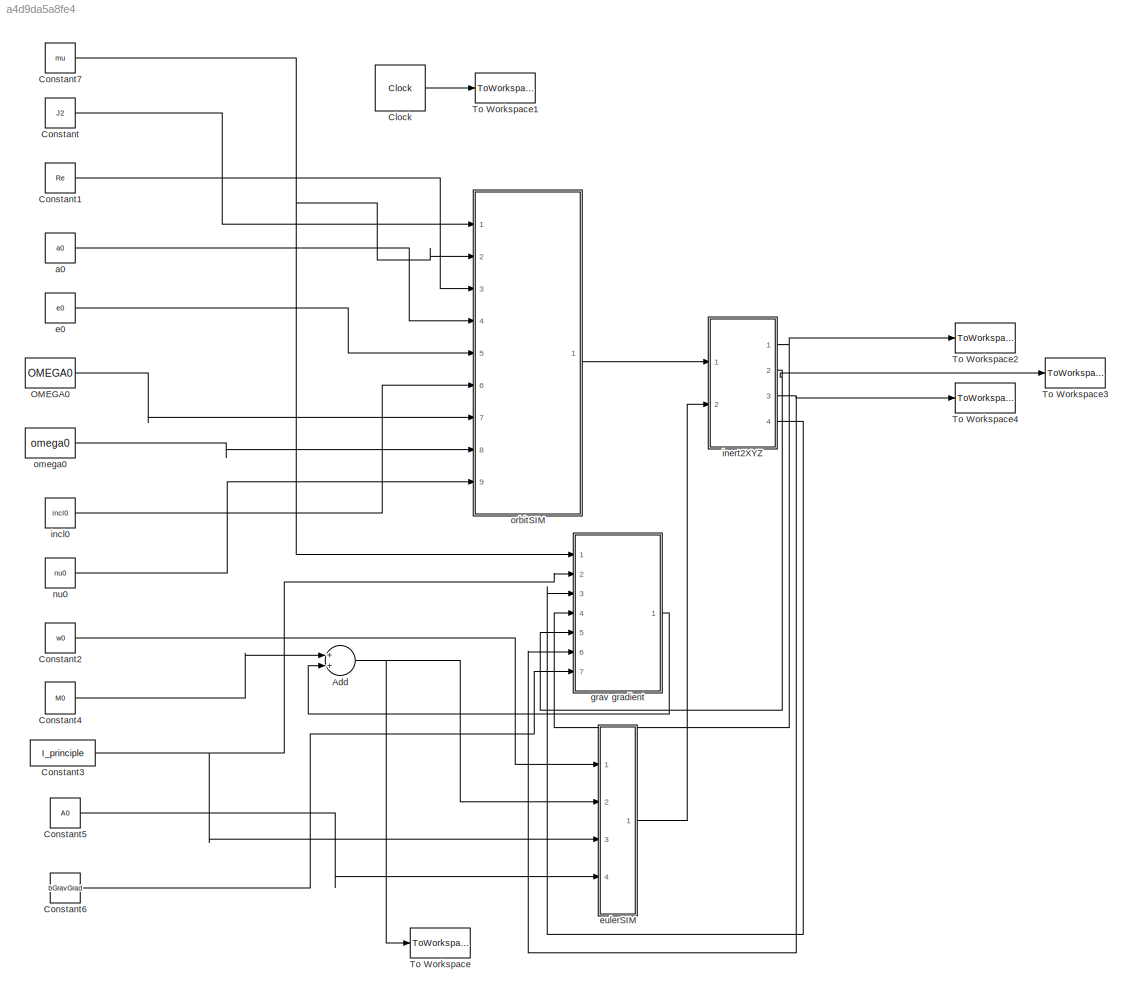
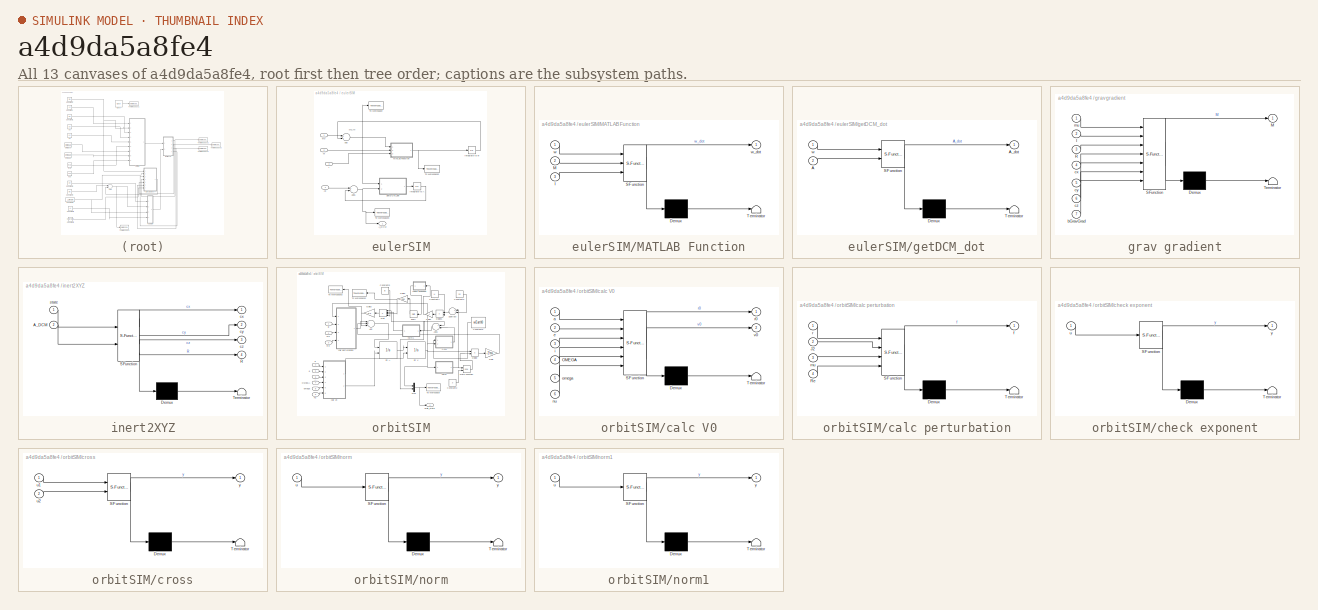
[diagram: thumbnail index - all 13 canvases of the model, root first then tree order]
MODEL slx_a4d9da5a8fe4
KIND model
CONFIG AbsTol = auto
CONFIG FixedStep = auto
CONFIG MaxStep = 60
CONFIG MinStep = auto
CONFIG RelTol = 1e-3
CONFIG SampleTimeConstraint = Unconstrained
CONFIG Solver = ode45
CONFIG SolverMode = Auto
CONFIG SolverName = ode45
CONFIG StartTime = 0.0
CONFIG StopTime = t_total
BLOCK [Sum] Add
  InputSameDT = off
  OutDataTypeStr = Inherit: Inherit via internal rule
  Ports = [2, 1]
  SaturateOnIntegerOverflow = off
BLOCK [Clock] Clock
BLOCK [Constant] Constant
  Value = J2
BLOCK [Constant] Constant1
  Value = Re
BLOCK [Constant] Constant2
  Value = w0
BLOCK [Constant] Constant3
  Value = I_principle
BLOCK [Constant] Constant4
  Value = M0
BLOCK [Constant] Constant5
  Value = A0
BLOCK [Constant] Constant6
  Value = bGravGrad
BLOCK [Constant] Constant7
  Value = mu
BLOCK [Constant] OMEGA0
  Value = OMEGA0
BLOCK [ToWorkspace] To Workspace
  FixptAsFi = on
  MaxDataPoints = inf
  Ports = [1]
  SampleTime = -1
  Save2DSignal = 3-D array (concatenate along third dimension)
  VariableName = Moments
BLOCK [ToWorkspace] To Workspace1
  FixptAsFi = on
  MaxDataPoints = inf
  Ports = [1]
  SampleTime = -1
  Save2DSignal = 3-D array (concatenate along third dimension)
  VariableName = tout
BLOCK [ToWorkspace] To Workspace2
  FixptAsFi = on
  MaxDataPoints = inf
  Ports = [1]
  SampleTime = -1
  Save2DSignal = 3-D array (concatenate along third dimension)
  VariableName = cx
BLOCK [ToWorkspace] To Workspace3
  FixptAsFi = on
  MaxDataPoints = inf
  Ports = [1]
  SampleTime = -1
  Save2DSignal = 3-D array (concatenate along third dimension)
  VariableName = cy
BLOCK [ToWorkspace] To Workspace4
  FixptAsFi = on
  MaxDataPoints = inf
  Ports = [1]
  SampleTime = -1
  Save2DSignal = 3-D array (concatenate along third dimension)
  VariableName = cz
BLOCK [Constant] a0
  Value = a0
BLOCK [Constant] e0
  Value = e0
BLOCK [SubSystem] eulerSIM
  Ports = [4, 1]
  RequestExecContextInheritance = off
BLOCK [Inport] eulerSIM/A0
  IconDisplay = Port number
  Port = 4
BLOCK [Outport] eulerSIM/A_DCM
  IconDisplay = Port number
BLOCK [Sum] eulerSIM/Add
  InputSameDT = off
  OutDataTypeStr = Inherit: Inherit via internal rule
  Ports = [2, 1]
  SaturateOnIntegerOverflow = off
BLOCK [Sum] eulerSIM/Add1
  InputSameDT = off
  OutDataTypeStr = Inherit: Inherit via internal rule
  Ports = [2, 1]
  SaturateOnIntegerOverflow = off
BLOCK [Inport] eulerSIM/I
  IconDisplay = Port number
  Port = 3
BLOCK [Inport] eulerSIM/M
  IconDisplay = Port number
  Port = 2
BLOCK [SubSystem] eulerSIM/MATLAB Function
  ErrorFcn = Stateflow.Translate.translate
  PermitHierarchicalResolution = ExplicitOnly
  Ports = [3, 1]
  RequestExecContextInheritance = off
  SFBlockType = MATLAB Function
  TreatAsAtomicUnit = on
BLOCK [Demux] eulerSIM/MATLAB Function/ Demux 
  Outputs = 1
  Ports = [1, 1]
BLOCK [S-Function] eulerSIM/MATLAB Function/ SFunction 
  EnableBusSupport = on
  FunctionName = sf_sfun
  PortCounts = [3 2]
  Ports = [3, 2]
  Tag = Stateflow S-Function sixDOF_SIM 7
BLOCK [Terminator] eulerSIM/MATLAB Function/ Terminator 
BLOCK [Inport] eulerSIM/MATLAB Function/I
  IconDisplay = Port number
  Port = 3
BLOCK [Inport] eulerSIM/MATLAB Function/M
  IconDisplay = Port number
  Port = 2
BLOCK [Inport] eulerSIM/MATLAB Function/w
  IconDisplay = Port number
BLOCK [Outport] eulerSIM/MATLAB Function/w_dot
  IconDisplay = Port number
BLOCK [ToWorkspace] eulerSIM/To Workspace
  FixptAsFi = on
  MaxDataPoints = inf
  Ports = [1]
  SampleTime = -1
  Save2DSignal = 3-D array (concatenate along third dimension)
  VariableName = ang_vel
BLOCK [ToWorkspace] eulerSIM/To Workspace2
  FixptAsFi = on
  MaxDataPoints = inf
  Ports = [1]
  SampleTime = -1
  Save2DSignal = 3-D array (concatenate along third dimension)
  VariableName = ang_accel
BLOCK [ToWorkspace] eulerSIM/To Workspace3
  FixptAsFi = on
  MaxDataPoints = inf
  Ports = [1]
  SampleTime = -1
  Save2DSignal = 3-D array (concatenate along third dimension)
  VariableName = A_DCM
BLOCK [SubSystem] eulerSIM/getDCM_dot
  ErrorFcn = Stateflow.Translate.translate
  PermitHierarchicalResolution = ExplicitOnly
  Ports = [2, 1]
  RequestExecContextInheritance = off
  SFBlockType = MATLAB Function
  TreatAsAtomicUnit = on
BLOCK [Demux] eulerSIM/getDCM_dot/ Demux 
  Outputs = 1
  Ports = [1, 1]
BLOCK [S-Function] eulerSIM/getDCM_dot/ SFunction 
  EnableBusSupport = on
  FunctionName = sf_sfun
  PortCounts = [2 2]
  Ports = [2, 2]
  Tag = Stateflow S-Function sixDOF_SIM 8
BLOCK [Terminator] eulerSIM/getDCM_dot/ Terminator 
BLOCK [Inport] eulerSIM/getDCM_dot/A
  IconDisplay = Port number
  Port = 2
BLOCK [Outport] eulerSIM/getDCM_dot/A_dot
  IconDisplay = Port number
BLOCK [Inport] eulerSIM/getDCM_dot/w
  IconDisplay = Port number
BLOCK [Integrator] eulerSIM/integrate to A
  Ports = [1, 1]
BLOCK [Integrator] eulerSIM/integrate to w
  Ports = [1, 1]
BLOCK [Inport] eulerSIM/w0
  IconDisplay = Port number
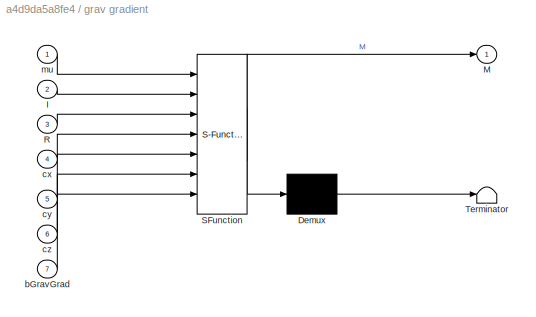
BLOCK [SubSystem] grav gradient
  ErrorFcn = Stateflow.Translate.translate
  PermitHierarchicalResolution = ExplicitOnly
  Ports = [7, 1]
  RequestExecContextInheritance = off
  SFBlockType = MATLAB Function
  TreatAsAtomicUnit = on
BLOCK [Demux] grav gradient/ Demux 
  Outputs = 1
  Ports = [1, 1]
BLOCK [S-Function] grav gradient/ SFunction 
  EnableBusSupport = on
  FunctionName = sf_sfun
  PortCounts = [7 2]
  Ports = [7, 2]
  Tag = Stateflow S-Function sixDOF_SIM 9
BLOCK [Terminator] grav gradient/ Terminator 
BLOCK [Inport] grav gradient/I
  IconDisplay = Port number
  Port = 2
BLOCK [Outport] grav gradient/M
  IconDisplay = Port number
BLOCK [Inport] grav gradient/R
  IconDisplay = Port number
  Port = 3
BLOCK [Inport] grav gradient/bGravGrad
  IconDisplay = Port number
  Port = 7
BLOCK [Inport] grav gradient/cx
  IconDisplay = Port number
  Port = 4
BLOCK [Inport] grav gradient/cy
  IconDisplay = Port number
  Port = 5
BLOCK [Inport] grav gradient/cz
  IconDisplay = Port number
  Port = 6
BLOCK [Inport] grav gradient/mu
  IconDisplay = Port number
BLOCK [Constant] incl0
  Value = incl0
BLOCK [SubSystem] inert2XYZ
  ErrorFcn = Stateflow.Translate.translate
  PermitHierarchicalResolution = ExplicitOnly
  Ports = [2, 4]
  RequestExecContextInheritance = off
  SFBlockType = MATLAB Function
  TreatAsAtomicUnit = on
BLOCK [Demux] inert2XYZ/ Demux 
  Outputs = 1
  Ports = [1, 1]
BLOCK [S-Function] inert2XYZ/ SFunction 
  EnableBusSupport = on
  FunctionName = sf_sfun
  PortCounts = [2 5]
  Ports = [2, 5]
  Tag = Stateflow S-Function sixDOF_SIM 10
BLOCK [Terminator] inert2XYZ/ Terminator 
BLOCK [Inport] inert2XYZ/A_DCM
  IconDisplay = Port number
  Port = 2
BLOCK [Outport] inert2XYZ/R
  IconDisplay = Port number
  Port = 4
BLOCK [Outport] inert2XYZ/cx
  IconDisplay = Port number
BLOCK [Outport] inert2XYZ/cy
  IconDisplay = Port number
  Port = 2
BLOCK [Outport] inert2XYZ/cz
  IconDisplay = Port number
  Port = 3
BLOCK [Inport] inert2XYZ/state
  IconDisplay = Port number
BLOCK [Constant] nu0
  Value = nu0
BLOCK [Constant] omega0
  Value = omega0
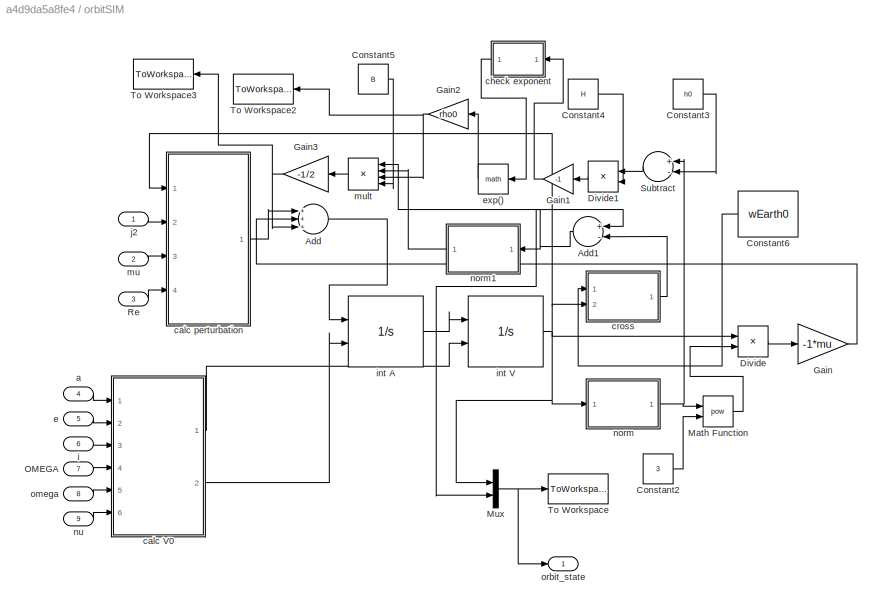
BLOCK [SubSystem] orbitSIM
  Ports = [9, 1]
  RequestExecContextInheritance = off
BLOCK [Sum] orbitSIM/Add
  InputSameDT = off
  Inputs = +++
  OutDataTypeStr = Inherit: Inherit via internal rule
  Ports = [3, 1]
  SaturateOnIntegerOverflow = off
BLOCK [Sum] orbitSIM/Add1
  InputSameDT = off
  Inputs = +-
  OutDataTypeStr = Inherit: Inherit via internal rule
  Ports = [2, 1]
  SaturateOnIntegerOverflow = off
BLOCK [Constant] orbitSIM/Constant2
  Value = 3
BLOCK [Constant] orbitSIM/Constant3
  Value = h0
BLOCK [Constant] orbitSIM/Constant4
  Value = H
BLOCK [Constant] orbitSIM/Constant5
  Value = B
BLOCK [Constant] orbitSIM/Constant6
  Value = wEarth0
BLOCK [Product] orbitSIM/Divide
  InputSameDT = off
  Inputs = */
  OutDataTypeStr = Inherit: Inherit via internal rule
  Ports = [2, 1]
  RndMeth = Floor
  SaturateOnIntegerOverflow = off
BLOCK [Product] orbitSIM/Divide1
  InputSameDT = off
  Inputs = */
  OutDataTypeStr = Inherit: Inherit via internal rule
  Ports = [2, 1]
  RndMeth = Floor
  SaturateOnIntegerOverflow = off
BLOCK [Gain] orbitSIM/Gain
  Gain = -1*mu
  OutDataTypeStr = Inherit: Inherit via internal rule
  ParamDataTypeStr = Inherit: Inherit via internal rule
  SaturateOnIntegerOverflow = off
BLOCK [Gain] orbitSIM/Gain1
  Gain = -1
  OutDataTypeStr = Inherit: Inherit via internal rule
  ParamDataTypeStr = Inherit: Inherit via internal rule
  SaturateOnIntegerOverflow = off
BLOCK [Gain] orbitSIM/Gain2
  Gain = rho0
  OutDataTypeStr = Inherit: Inherit via internal rule
  ParamDataTypeStr = Inherit: Inherit via internal rule
  SaturateOnIntegerOverflow = off
BLOCK [Gain] orbitSIM/Gain3
  Gain = -1/2
  OutDataTypeStr = Inherit: Inherit via internal rule
  ParamDataTypeStr = Inherit: Inherit via internal rule
  SaturateOnIntegerOverflow = off
BLOCK [Math] orbitSIM/Math Function
  Operator = pow
  Ports = [2, 1]
BLOCK [Mux] orbitSIM/Mux
  DisplayOption = bar
  Inputs = 2
  Ports = [2, 1]
BLOCK [Inport] orbitSIM/OMEGA
  IconDisplay = Port number
  Port = 7
BLOCK [Inport] orbitSIM/Re
  IconDisplay = Port number
  Port = 3
BLOCK [Sum] orbitSIM/Subtract
  InputSameDT = off
  Inputs = +-
  OutDataTypeStr = Inherit: Inherit via internal rule
  Ports = [2, 1]
  SaturateOnIntegerOverflow = off
BLOCK [ToWorkspace] orbitSIM/To Workspace
  FixptAsFi = on
  MaxDataPoints = inf
  Ports = [1]
  SampleTime = -1
  Save2DSignal = 3-D array (concatenate along third dimension)
  VariableName = Xout
BLOCK [ToWorkspace] orbitSIM/To Workspace2
  FixptAsFi = on
  MaxDataPoints = inf
  Ports = [1]
  SampleTime = -1
  Save2DSignal = 3-D array (concatenate along third dimension)
  VariableName = rho
BLOCK [ToWorkspace] orbitSIM/To Workspace3
  FixptAsFi = on
  MaxDataPoints = inf
  Ports = [1]
  SampleTime = -1
  Save2DSignal = 3-D array (concatenate along third dimension)
  VariableName = fDrag
BLOCK [Inport] orbitSIM/a
  IconDisplay = Port number
  Port = 4
BLOCK [SubSystem] orbitSIM/calc V0
  ErrorFcn = Stateflow.Translate.translate
  PermitHierarchicalResolution = ExplicitOnly
  Ports = [6, 2]
  RequestExecContextInheritance = off
  SFBlockType = MATLAB Function
  TreatAsAtomicUnit = on
BLOCK [Demux] orbitSIM/calc V0/ Demux 
  Outputs = 1
  Ports = [1, 1]
BLOCK [S-Function] orbitSIM/calc V0/ SFunction 
  EnableBusSupport = on
  FunctionName = sf_sfun
  PortCounts = [6 3]
  Ports = [6, 3]
  Tag = Stateflow S-Function sixDOF_SIM 3
BLOCK [Terminator] orbitSIM/calc V0/ Terminator 
BLOCK [Inport] orbitSIM/calc V0/OMEGA
  IconDisplay = Port number
  Port = 4
BLOCK [Inport] orbitSIM/calc V0/a
  IconDisplay = Port number
BLOCK [Inport] orbitSIM/calc V0/e
  IconDisplay = Port number
  Port = 2
BLOCK [Inport] orbitSIM/calc V0/i
  IconDisplay = Port number
  Port = 3
BLOCK [Inport] orbitSIM/calc V0/nu
  IconDisplay = Port number
  Port = 6
BLOCK [Inport] orbitSIM/calc V0/omega
  IconDisplay = Port number
  Port = 5
BLOCK [Outport] orbitSIM/calc V0/r0
  IconDisplay = Port number
BLOCK [Outport] orbitSIM/calc V0/v0
  IconDisplay = Port number
  Port = 2
BLOCK [SubSystem] orbitSIM/calc perturbation
  ErrorFcn = Stateflow.Translate.translate
  PermitHierarchicalResolution = ExplicitOnly
  Ports = [4, 1]
  RequestExecContextInheritance = off
  SFBlockType = MATLAB Function
  TreatAsAtomicUnit = on
BLOCK [Demux] orbitSIM/calc perturbation/ Demux 
  Outputs = 1
  Ports = [1, 1]
BLOCK [S-Function] orbitSIM/calc perturbation/ SFunction 
  EnableBusSupport = on
  FunctionName = sf_sfun
  PortCounts = [4 2]
  Ports = [4, 2]
  Tag = Stateflow S-Function sixDOF_SIM 2
BLOCK [Terminator] orbitSIM/calc perturbation/ Terminator 
BLOCK [Inport] orbitSIM/calc perturbation/J2
  IconDisplay = Port number
  Port = 2
BLOCK [Inport] orbitSIM/calc perturbation/Re
  IconDisplay = Port number
  Port = 4
BLOCK [Outport] orbitSIM/calc perturbation/f
  IconDisplay = Port number
BLOCK [Inport] orbitSIM/calc perturbation/mu
  IconDisplay = Port number
  Port = 3
BLOCK [Inport] orbitSIM/calc perturbation/r
  IconDisplay = Port number
BLOCK [SubSystem] orbitSIM/check exponent
  ErrorFcn = Stateflow.Translate.translate
  PermitHierarchicalResolution = ExplicitOnly
  Ports = [1, 1]
  RequestExecContextInheritance = off
  SFBlockType = MATLAB Function
  TreatAsAtomicUnit = on
BLOCK [Demux] orbitSIM/check exponent/ Demux 
  Outputs = 1
  Ports = [1, 1]
BLOCK [S-Function] orbitSIM/check exponent/ SFunction 
  EnableBusSupport = on
  FunctionName = sf_sfun
  PortCounts = [1 2]
  Ports = [1, 2]
  Tag = Stateflow S-Function sixDOF_SIM 6
BLOCK [Terminator] orbitSIM/check exponent/ Terminator 
BLOCK [Inport] orbitSIM/check exponent/u
  IconDisplay = Port number
BLOCK [Outport] orbitSIM/check exponent/y
  IconDisplay = Port number
BLOCK [SubSystem] orbitSIM/cross
  ErrorFcn = Stateflow.Translate.translate
  PermitHierarchicalResolution = ExplicitOnly
  Ports = [2, 1]
  RequestExecContextInheritance = off
  SFBlockType = MATLAB Function
  TreatAsAtomicUnit = on
BLOCK [Demux] orbitSIM/cross/ Demux 
  Outputs = 1
  Ports = [1, 1]
BLOCK [S-Function] orbitSIM/cross/ SFunction 
  EnableBusSupport = on
  FunctionName = sf_sfun
  PortCounts = [2 2]
  Ports = [2, 2]
  Tag = Stateflow S-Function sixDOF_SIM 5
BLOCK [Terminator] orbitSIM/cross/ Terminator 
BLOCK [Inport] orbitSIM/cross/u1
  IconDisplay = Port number
BLOCK [Inport] orbitSIM/cross/u2
  IconDisplay = Port number
  Port = 2
BLOCK [Outport] orbitSIM/cross/y
  IconDisplay = Port number
BLOCK [Inport] orbitSIM/e
  IconDisplay = Port number
  Port = 5
BLOCK [Math] orbitSIM/exp()
  Ports = [1, 1]
BLOCK [Inport] orbitSIM/i
  IconDisplay = Port number
  Port = 6
BLOCK [Integrator] orbitSIM/int A
  InitialConditionSource = external
  Ports = [2, 1]
BLOCK [Integrator] orbitSIM/int V
  InitialConditionSource = external
  Ports = [2, 1]
BLOCK [Inport] orbitSIM/j2
  IconDisplay = Port number
BLOCK [Inport] orbitSIM/mu
  IconDisplay = Port number
  Port = 2
BLOCK [Product] orbitSIM/mult
  InputSameDT = off
  Inputs = ****
  OutDataTypeStr = Inherit: Inherit via internal rule
  Ports = [4, 1]
  RndMeth = Floor
  SaturateOnIntegerOverflow = off
BLOCK [SubSystem] orbitSIM/norm
  ErrorFcn = Stateflow.Translate.translate
  PermitHierarchicalResolution = ExplicitOnly
  Ports = [1, 1]
  RequestExecContextInheritance = off
  SFBlockType = MATLAB Function
  TreatAsAtomicUnit = on
BLOCK [Demux] orbitSIM/norm/ Demux 
  Outputs = 1
  Ports = [1, 1]
BLOCK [S-Function] orbitSIM/norm/ SFunction 
  EnableBusSupport = on
  FunctionName = sf_sfun
  PortCounts = [1 2]
  Ports = [1, 2]
  Tag = Stateflow S-Function sixDOF_SIM 1
BLOCK [Terminator] orbitSIM/norm/ Terminator 
BLOCK [Inport] orbitSIM/norm/u
  IconDisplay = Port number
BLOCK [Outport] orbitSIM/norm/y
  IconDisplay = Port number
BLOCK [SubSystem] orbitSIM/norm1
  ErrorFcn = Stateflow.Translate.translate
  PermitHierarchicalResolution = ExplicitOnly
  Ports = [1, 1]
  RequestExecContextInheritance = off
  SFBlockType = MATLAB Function
  TreatAsAtomicUnit = on
BLOCK [Demux] orbitSIM/norm1/ Demux 
  Outputs = 1
  Ports = [1, 1]
BLOCK [S-Function] orbitSIM/norm1/ SFunction 
  EnableBusSupport = on
  FunctionName = sf_sfun
  PortCounts = [1 2]
  Ports = [1, 2]
  Tag = Stateflow S-Function sixDOF_SIM 4
BLOCK [Terminator] orbitSIM/norm1/ Terminator 
BLOCK [Inport] orbitSIM/norm1/u
  IconDisplay = Port number
BLOCK [Outport] orbitSIM/norm1/y
  IconDisplay = Port number
BLOCK [Inport] orbitSIM/nu
  IconDisplay = Port number
  Port = 9
BLOCK [Inport] orbitSIM/omega
  IconDisplay = Port number
  Port = 8
BLOCK [Outport] orbitSIM/orbit_state
  IconDisplay = Port number
ANNOTATION eulerSIM: ang_vel
NET Add:1 -> To Workspace:1, eulerSIM:2
LINE Clock:1 -> To Workspace1:1
LINE Constant1:1 -> orbitSIM:3
LINE Constant2:1 -> eulerSIM:1
NET Constant3:1 -> eulerSIM:3, grav gradient:2
LINE Constant4:1 -> Add:1
LINE Constant5:1 -> eulerSIM:4
LINE Constant6:1 -> grav gradient:7
NET Constant7:1 -> grav gradient:1, orbitSIM:2
LINE Constant:1 -> orbitSIM:1
LINE OMEGA0:1 -> orbitSIM:7
LINE a0:1 -> orbitSIM:4
LINE e0:1 -> orbitSIM:5
LINE eulerSIM/A0:1 -> eulerSIM/Add1:1
NET eulerSIM/Add1:1 -> eulerSIM/A_DCM:1, eulerSIM/To Workspace3:1, eulerSIM/getDCM_dot:2
NET eulerSIM/Add:1 -> eulerSIM/MATLAB Function:1, eulerSIM/To Workspace:1, eulerSIM/getDCM_dot:1
LINE eulerSIM/I:1 -> eulerSIM/MATLAB Function:3
LINE eulerSIM/M:1 -> eulerSIM/MATLAB Function:2
NET eulerSIM/MATLAB Function:1 -> eulerSIM/To Workspace2:1, eulerSIM/integrate to w:1
LINE eulerSIM/getDCM_dot:1 -> eulerSIM/integrate to A:1
LINE eulerSIM/integrate to A:1 -> eulerSIM/Add1:2
LINE eulerSIM/integrate to w:1 -> eulerSIM/Add:2
LINE eulerSIM/w0:1 -> eulerSIM/Add:1
LINE eulerSIM:1 -> inert2XYZ:2
LINE grav gradient:1 -> Add:2
LINE incl0:1 -> orbitSIM:6
NET inert2XYZ:1 -> To Workspace2:1, grav gradient:4
NET inert2XYZ:2 -> To Workspace3:1, grav gradient:5
NET inert2XYZ:3 -> To Workspace4:1, grav gradient:6
LINE inert2XYZ:4 -> grav gradient:3
LINE nu0:1 -> orbitSIM:9
LINE omega0:1 -> orbitSIM:8
NET orbitSIM/Add1:1 -> orbitSIM/mult:1, orbitSIM/norm1:1
LINE orbitSIM/Add:1 -> orbitSIM/int A:1
LINE orbitSIM/Constant2:1 -> orbitSIM/Math Function:2
LINE orbitSIM/Constant3:1 -> orbitSIM/Subtract:2
LINE orbitSIM/Constant4:1 -> orbitSIM/Divide1:2
LINE orbitSIM/Constant5:1 -> orbitSIM/mult:4
LINE orbitSIM/Constant6:1 -> orbitSIM/cross:1
LINE orbitSIM/Divide1:1 -> orbitSIM/Gain1:1
LINE orbitSIM/Divide:1 -> orbitSIM/Gain:1
LINE orbitSIM/Gain1:1 -> orbitSIM/check exponent:1
NET orbitSIM/Gain2:1 -> orbitSIM/To Workspace2:1, orbitSIM/mult:3
NET orbitSIM/Gain3:1 -> orbitSIM/Add:3, orbitSIM/To Workspace3:1
LINE orbitSIM/Gain:1 -> orbitSIM/Add:2
LINE orbitSIM/Math Function:1 -> orbitSIM/Divide:2
NET orbitSIM/Mux:1 -> orbitSIM/To Workspace:1, orbitSIM/orbit_state:1
LINE orbitSIM/OMEGA:1 -> orbitSIM/calc V0:4
LINE orbitSIM/Re:1 -> orbitSIM/calc perturbation:4
LINE orbitSIM/Subtract:1 -> orbitSIM/Divide1:1
LINE orbitSIM/a:1 -> orbitSIM/calc V0:1
LINE orbitSIM/calc V0:1 -> orbitSIM/int V:2
LINE orbitSIM/calc V0:2 -> orbitSIM/int A:2
LINE orbitSIM/calc perturbation:1 -> orbitSIM/Add:1
LINE orbitSIM/check exponent:1 -> orbitSIM/exp():1
LINE orbitSIM/cross:1 -> orbitSIM/Add1:2
LINE orbitSIM/e:1 -> orbitSIM/calc V0:2
LINE orbitSIM/exp():1 -> orbitSIM/Gain2:1
LINE orbitSIM/i:1 -> orbitSIM/calc V0:3
NET orbitSIM/int A:1 -> orbitSIM/Add1:1, orbitSIM/Mux:2, orbitSIM/int V:1
NET orbitSIM/int V:1 -> orbitSIM/Divide:1, orbitSIM/Mux:1, orbitSIM/calc perturbation:1, orbitSIM/cross:2, orbitSIM/norm:1
LINE orbitSIM/j2:1 -> orbitSIM/calc perturbation:2
LINE orbitSIM/mu:1 -> orbitSIM/calc perturbation:3
LINE orbitSIM/mult:1 -> orbitSIM/Gain3:1
LINE orbitSIM/norm1:1 -> orbitSIM/mult:2
NET orbitSIM/norm:1 -> orbitSIM/Math Function:1, orbitSIM/Subtract:1
LINE orbitSIM/nu:1 -> orbitSIM/calc V0:6
LINE orbitSIM/omega:1 -> orbitSIM/calc V0:5
LINE orbitSIM:1 -> inert2XYZ:1
note: NET lines group one-source signal fan-out (src -> all destinations, sorted); 1:1 wires keep LINE
CHART orbitSIM/norm states=1 transitions=1
  STATE_LABEL 'eML_blk_kernel()'
  STATE_LABEL 'SCRIPT:\nfunction y = fcn(u)\n%#codegen\n\ny = norm(u);'
CHART orbitSIM/calc perturbation states=1 transitions=1
  STATE_LABEL 'eML_blk_kernel()'
  STATE_LABEL "SCRIPT:\nfunction f = fcn(r, J2, mu, Re)\n% NOTE! EVERYTHING IN DEGREES\n% \n% fR = -3*mu*J2*Re^2/(2*r^4)*(1-3*sind(incl)^2*sind(u)^2);\n% fT = -3*mu*J2*Re^2/(2*r^4)*(sind(incl)^2*sind(u)*cosd(u));\n% fN = -3*mu*J2*Re^2/(2*r^4)*(sind(incl)*cosd(incl)*sind(u));\nrMag = norm(r);\nrDir = r ./ norm(r);\nf = -mu*J2*Re^2/2*( [0, 0, 6*r(3)/rMag^5]' + ...\n      (3/rMag^4 - 15*(r(3)^2/rMag^6)).*rDir);\n\nend"
CHART orbitSIM/calc V0 states=1 transitions=1
  STATE_LABEL 'eML_blk_kernel()'
  STATE_LABEL 'SCRIPT:\nfunction [r0, v0] = fcn(a, e, i, OMEGA, omega, nu)\n%#codegen\n[r0, v0] = OE2XV(a, e, i, OMEGA, omega, nu);\nend'
CHART orbitSIM/norm1 states=1 transitions=1
  STATE_LABEL 'eML_blk_kernel()'
  STATE_LABEL 'SCRIPT:\nfunction y = fcn(u)\n%#codegen\n\ny = norm(u);'
CHART orbitSIM/cross states=1 transitions=1
  STATE_LABEL 'eML_blk_kernel()'
  STATE_LABEL 'SCRIPT:\nfunction y = fcn(u1,u2)\n%#codegen\n\ny = cross(u1,u2);'
CHART orbitSIM/check exponent states=1 transitions=1
  STATE_LABEL 'eML_blk_kernel()'
  STATE_LABEL 'SCRIPT:\nfunction y = fcn(u)\n%#codegen\nif u>0\n  y = 0;\nelse\n  y = u;\nend'
CHART eulerSIM/MATLAB Function states=1 transitions=1
  STATE_LABEL 'eML_blk_kernel()'
  STATE_LABEL 'SCRIPT:\nfunction w_dot = eulerRHS(w, M, I)\n% principle axis euler eq\n% w is 3x1 rotational velocity\n% M is 3x1 external torques\nIx = I(1,1); Iy = I(2,2); Iz = I(3,3);\nw_dot = zeros(3,1);\nw_dot(1) = (M(1) - (Iz - Iy)*w(2)*w(3) ) / Ix;\nw_dot(2) = (M(2) - (Ix - Iz)*w(1)*w(3) ) / Iy;\nw_dot(3) = (M(3) - (Iy - Ix)*w(1)*w(2) ) / Iz;\nend'
CHART eulerSIM/getDCM_dot states=1 transitions=1
  STATE_LABEL 'eML_blk_kernel()'
  STATE_LABEL 'SCRIPT:\nfunction A_dot   = getDCM_dot( w, A )\n%GETDCM_DOT calculate time-derivative of DCM\n% w is ang vel of body axes w.r.t. inertial EXPRESSED IN INERTIAL\n[ A_dot ] = getDCM_dot( w, A );\n\nend\n\n'
CHART grav gradient states=1 transitions=1
  STATE_LABEL 'eML_blk_kernel()'
  STATE_LABEL "SCRIPT:\nfunction M = fcn(mu, I, R, cx, cy, cz, bGravGrad)\n%#codegen\nif bGravGrad\n  M = gravGradient( mu, I, R, cx, cy, cz );\nelse\n  M = [0 0 0]';\nend\n"
CHART inert2XYZ states=1 transitions=1
  STATE_LABEL 'eML_blk_kernel()'
  STATE_LABEL "SCRIPT:\nfunction [cx, cy, cz, R] = fcn(state, A_DCM)\n%#codegen\n%A should be principle to inertial\nA = getP2IfromA_DCM( A_DCM );\nR = norm(state(1:3));\nc = 1 / R * A' * state(1:3);\ncx = c(1);\ncy = c(2);\ncz = c(3);"
